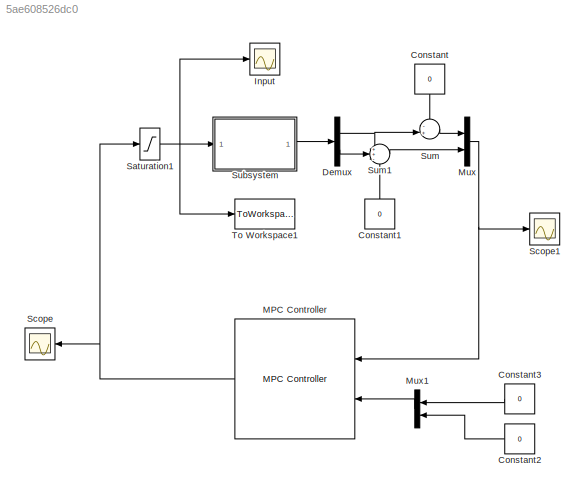
MODEL slx_5ae608526dc0
KIND model
CONFIG AbsTol = auto
CONFIG EnableMultiTasking = on
CONFIG FixedStep = auto
CONFIG MaxStep = auto
CONFIG MinStep = auto
CONFIG RelTol = 1e-3
CONFIG SampleTimeConstraint = Unconstrained
CONFIG Solver = ode45
CONFIG SolverName = ode45
CONFIG StartTime = 0.0
CONFIG StopTime = inf
BLOCK [Constant] Constant
  Value = 0
BLOCK [Constant] Constant1
  Value = 0
BLOCK [Constant] Constant2
  Value = 0
BLOCK [Constant] Constant3
  Value = 0
BLOCK [Demux] Demux
  DisplayOption = bar
  Outputs = 2
  Ports = [1, 2]
BLOCK [Scope] Input
  NumInputPorts = 1
  Ports = [1]
  ScopeSpecificationString = Simulink.scopes.TimeScopeBlockCfg('CurrentConfiguration', extmgr.ConfigurationSet(extmgr.Configuration('Core','General UI',true),extmgr.Configuration('Core','Source UI',true),extmgr.Configuration('Sources','WiredSimulink',true,'DataLoggingSaveFormat','StructureWithTime','DataLoggingLimitDataPoints',true,'DataLoggingDecimation','1','DataLoggingDecimateData',true),extmgr.Configuration('Visuals','Tim...<+1628ch>
BLOCK [Reference] MPC Controller  REF=mpclib/MPC Controller  (lib defined in mdl_ae329e0e0455)
  Ports = [2, 1]
  SCDEnableBlockLinearizationSpecification = on
  SourceBlock = mpclib/MPC Controller
  SourceProductBaseCode = MP
  SourceProductName = Model Predictive Control Toolbox
  SourceType = MPC
BLOCK [Mux] Mux
  DisplayOption = bar
  Inputs = 2
  Ports = [2, 1]
BLOCK [Mux] Mux1
  DisplayOption = bar
  Inputs = 2
  Ports = [2, 1]
BLOCK [Saturate] Saturation1
  InputPortMap = u0
  LowerLimit = -1
  Ports = [1, 1]
  UpperLimit = 1
BLOCK [Scope] Scope
  NumInputPorts = 1
  Ports = [1]
  ScopeSpecificationString = Simulink.scopes.TimeScopeBlockCfg('CurrentConfiguration', extmgr.ConfigurationSet(extmgr.Configuration('Core','General UI',true),extmgr.Configuration('Core','Source UI',true),extmgr.Configuration('Sources','WiredSimulink',true,'DataLoggingVariableName','ScopeData1'),extmgr.Configuration('Visuals','Time Domain',true,'SerializedDisplays',{struct('MinYLimReal','-0.37415','MaxYLimReal','0.3935','YLabe...<+1417ch>
BLOCK [Scope] Scope1
  NumInputPorts = 1
  Ports = [1]
  ScopeSpecificationString = Simulink.scopes.TimeScopeBlockCfg('CurrentConfiguration', extmgr.ConfigurationSet(extmgr.Configuration('Core','General UI',true),extmgr.Configuration('Core','Source UI',true),extmgr.Configuration('Sources','WiredSimulink',true,'DataLoggingVariableName','ScopeData3'),extmgr.Configuration('Visuals','Time Domain',true,'SerializedDisplays',{struct('MinYLimReal','-3.89925','MaxYLimReal','6.61503','YLab...<+1433ch>
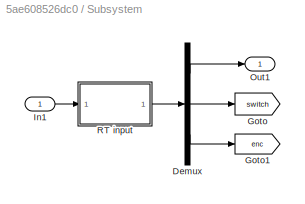
BLOCK [SubSystem] Subsystem
  Ports = [1, 1]
  RequestExecContextInheritance = off
  Variant = off
BLOCK [Demux] Subsystem/Demux
  DisplayOption = bar
  Outputs = [2 4 1]
  Ports = [1, 3]
BLOCK [Goto] Subsystem/Goto
  GotoTag = switch
  TagVisibility = global
BLOCK [Goto] Subsystem/Goto1
  GotoTag = enc
  TagVisibility = global
BLOCK [Inport] Subsystem/In1
  IconDisplay = Port number
BLOCK [Outport] Subsystem/Out1
  IconDisplay = Port number
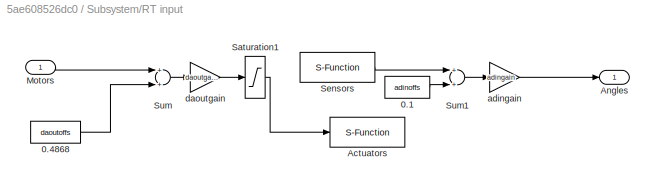
BLOCK [SubSystem] Subsystem/RT input
  Ports = [1, 1]
  RequestExecContextInheritance = off
  Variant = off
BLOCK [Constant] Subsystem/RT input/0.1
  Value = adinoffs
BLOCK [Constant] Subsystem/RT input/0.4868
  Value = daoutoffs
BLOCK [S-Function] Subsystem/RT input/Actuators
  EnableBusSupport = off
  FunctionName = sfusbout
  Parameters = Ts, fugihandle
  Ports = [1]
  SFcnIsStateOwnerBlock = off
  SFunctionDeploymentMode = off
BLOCK [Outport] Subsystem/RT input/Angles
  IconDisplay = Port number
BLOCK [Inport] Subsystem/RT input/Motors
  IconDisplay = Port number
BLOCK [Saturate] Subsystem/RT input/Saturation1
  InputPortMap = u0
  LowerLimit = -10
  Ports = [1, 1]
  UpperLimit = 10
BLOCK [S-Function] Subsystem/RT input/Sensors
  EnableBusSupport = off
  FunctionName = sfusbin
  Parameters = Ts, fugihandle, channels
  Ports = [0, 1]
  SFcnIsStateOwnerBlock = off
  SFunctionDeploymentMode = off
BLOCK [Sum] Subsystem/RT input/Sum
  Ports = [2, 1]
BLOCK [Sum] Subsystem/RT input/Sum1
  Ports = [2, 1]
BLOCK [Gain] Subsystem/RT input/adingain
  Gain = adingain
BLOCK [Gain] Subsystem/RT input/daoutgain
  Gain = daoutgain
BLOCK [Sum] Sum
  IconShape = round
  InputSameDT = off
  Inputs = -+|
  OutDataTypeStr = Inherit: Inherit via internal rule
  Ports = [2, 1]
  SaturateOnIntegerOverflow = off
BLOCK [Sum] Sum1
  IconShape = round
  InputSameDT = off
  Inputs = ++-
  OutDataTypeStr = Inherit: Inherit via internal rule
  Ports = [3, 1]
  SaturateOnIntegerOverflow = off
BLOCK [ToWorkspace] To Workspace1
  FixptAsFi = on
  MaxDataPoints = inf
  Ports = [1]
  SampleTime = -1
  Save2DSignal = 3-D array (concatenate along third dimension)
  SaveFormat = Timeseries
  VariableName = u_t
LINE Constant1:1 -> Sum1:3
LINE Constant2:1 -> Mux1:2
LINE Constant3:1 -> Mux1:1
LINE Constant:1 -> Sum:1
NET Demux:1 -> Sum1:1, Sum:2
LINE Demux:2 -> Sum1:2
NET MPC Controller:1 -> Saturation1:1, Scope:1
LINE Mux1:1 -> MPC Controller:2
NET Mux:1 -> MPC Controller:1, Scope1:1
NET Saturation1:1 -> Input:1, Subsystem:1, To Workspace1:1
LINE Subsystem/Demux:1 -> Subsystem/Out1:1
LINE Subsystem/Demux:2 -> Subsystem/Goto:1
LINE Subsystem/Demux:3 -> Subsystem/Goto1:1
LINE Subsystem/In1:1 -> Subsystem/RT input:1
LINE Subsystem/RT input/0.1:1 -> Subsystem/RT input/Sum1:2
LINE Subsystem/RT input/0.4868:1 -> Subsystem/RT input/Sum:2
LINE Subsystem/RT input/Motors:1 -> Subsystem/RT input/Sum:1
LINE Subsystem/RT input/Saturation1:1 -> Subsystem/RT input/Actuators:1
LINE Subsystem/RT input/Sensors:1 -> Subsystem/RT input/Sum1:1
LINE Subsystem/RT input/Sum1:1 -> Subsystem/RT input/adingain:1
LINE Subsystem/RT input/Sum:1 -> Subsystem/RT input/daoutgain:1
LINE Subsystem/RT input/adingain:1 -> Subsystem/RT input/Angles:1
LINE Subsystem/RT input/daoutgain:1 -> Subsystem/RT input/Saturation1:1
LINE Subsystem/RT input:1 -> Subsystem/Demux:1
LINE Subsystem:1 -> Demux:1
LINE Sum1:1 -> Mux:2
LINE Sum:1 -> Mux:1
note: NET lines group one-source signal fan-out (src -> all destinations, sorted); 1:1 wires keep LINE
